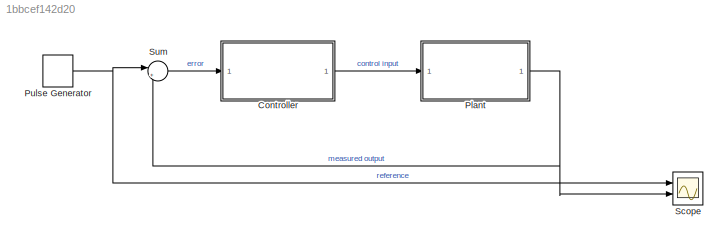
MODEL slx_1bbcef142d20
KIND model
CONFIG AbsTol = auto
CONFIG EnableMultiTasking = on
CONFIG FixedStep = auto
CONFIG MaxStep = 0.01
CONFIG MinStep = auto
CONFIG RelTol = 1e-4
CONFIG SampleTimeConstraint = Unconstrained
CONFIG Solver = VariableStepAuto
CONFIG SolverName = VariableStepAuto
CONFIG StartTime = 0.0
CONFIG StopTime = 200
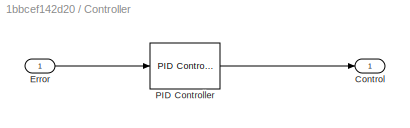
BLOCK [SubSystem] Controller
  Ports = [1, 1]
  RequestExecContextInheritance = off
BLOCK [Outport] Controller/Control
  IconDisplay = Port number
BLOCK [Inport] Controller/Error
  IconDisplay = Port number
BLOCK [Reference] Controller/PID Controller  REF=simulink/Continuous/PID Controller
  Ports = [1, 1]
  SourceBlock = simulink/Continuous/PID Controller
  SourceProductBaseCode = SL
  SourceProductName = Simulink
  SourceType = PID 1dof
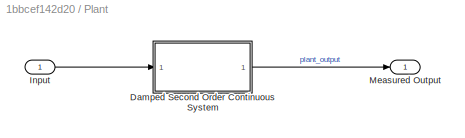
BLOCK [SubSystem] Plant
  Ports = [1, 1]
  RequestExecContextInheritance = off
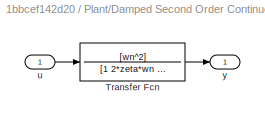
BLOCK [SubSystem] Plant/Damped Second Order Continuous System
  Ports = [1, 1]
  RequestExecContextInheritance = off
BLOCK [TransferFcn] Plant/Damped Second Order Continuous System/Transfer Fcn
  Denominator = [1 2*zeta*wn wn^2]
  Numerator = [wn^2]
BLOCK [Inport] Plant/Damped Second Order Continuous System/u
  IconDisplay = Port number
BLOCK [Outport] Plant/Damped Second Order Continuous System/y
  IconDisplay = Port number
BLOCK [Inport] Plant/Input
  IconDisplay = Port number
BLOCK [Outport] Plant/Measured Output
  IconDisplay = Port number
BLOCK [DiscretePulseGenerator] Pulse Generator
  Period = period
  PhaseDelay = delay
  Ports = [0, 1]
  PulseType = Time based
  PulseWidth = 50
BLOCK [Scope] Scope
  Floating = off
  NumInputPorts = 2
  Ports = [2]
  ScopeSpecificationString = Simulink.scopes.TimeScopeBlockCfg('CurrentConfiguration', extmgr.ConfigurationSet(extmgr.Configuration('Core','General UI',true),extmgr.Configuration('Core','Source UI',true),extmgr.Configuration('Sources','WiredSimulink',true),extmgr.Configuration('Visuals','Time Domain',true,'SerializedDisplays',{struct('MinYLimReal','-0.125','MaxYLimReal','1.125','YLabelReal','','MinYLimMag','0.00000','MaxYLimM...<+2060ch>
BLOCK [Sum] Sum
  IconShape = round
  InputSameDT = off
  Inputs = |+-
  OutDataTypeStr = Inherit: Inherit via internal rule
  Ports = [2, 1]
  SaturateOnIntegerOverflow = off
LINE Controller/Error:1 -> Controller/PID Controller:1
LINE Controller/PID Controller:1 -> Controller/Control:1
LINE Controller:1 -> Plant:1
LINE Plant/Damped Second Order Continuous System/Transfer Fcn:1 -> Plant/Damped Second Order Continuous System/y:1
LINE Plant/Damped Second Order Continuous System/u:1 -> Plant/Damped Second Order Continuous System/Transfer Fcn:1
LINE Plant/Damped Second Order Continuous System:1 -> Plant/Measured Output:1
LINE Plant/Input:1 -> Plant/Damped Second Order Continuous System:1
NET Plant:1 -> Scope:2, Sum:2
NET Pulse Generator:1 -> Scope:1, Sum:1
LINE Sum:1 -> Controller:1
note: NET lines group one-source signal fan-out (src -> all destinations, sorted); 1:1 wires keep LINE
